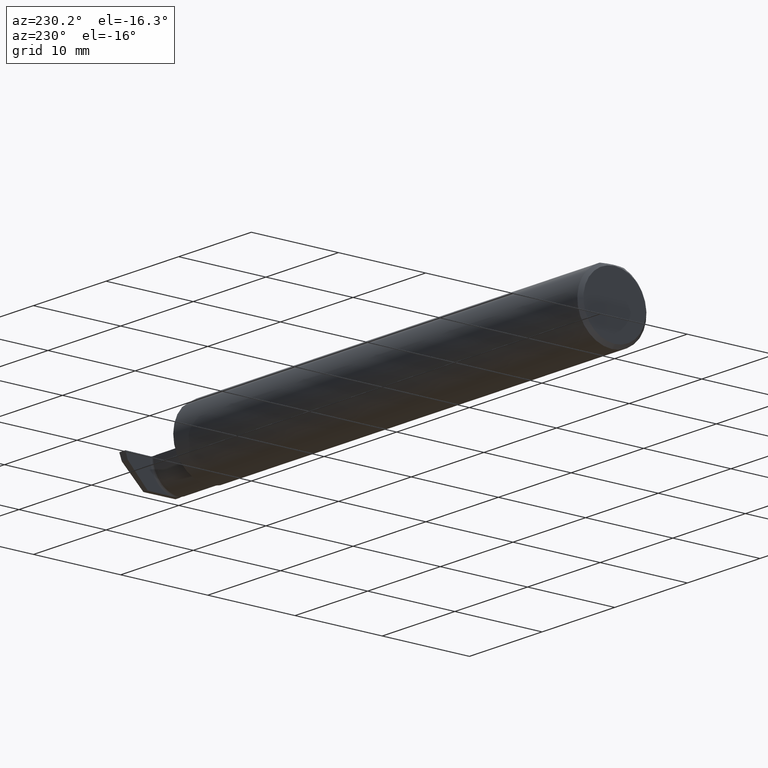
[diagram: clean part render]
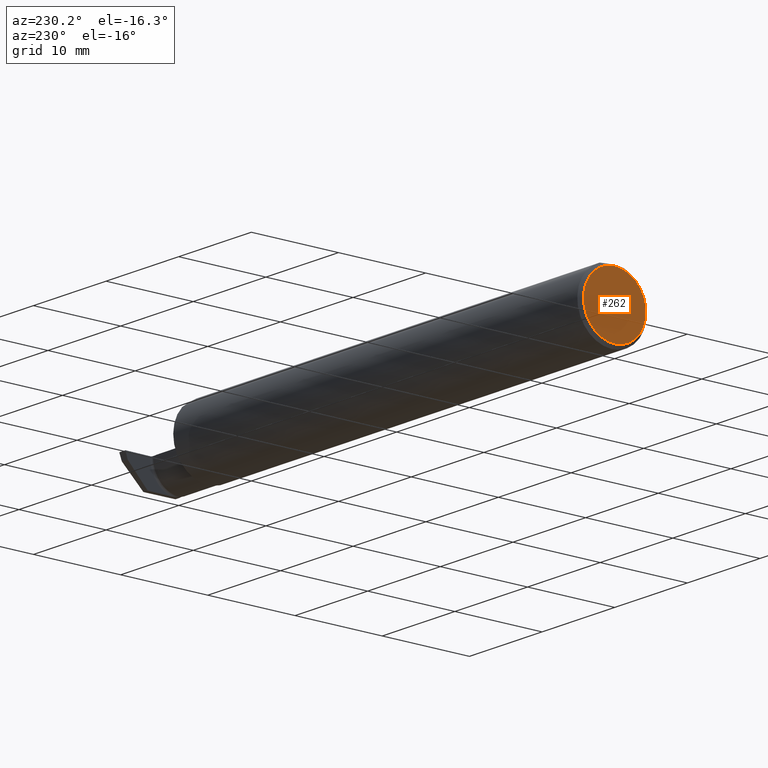
[diagram: same view with one face highlighted and labeled with its STEP entity id]
A machine part, auxiliary view. The second image highlights one B-rep face of the part: STEP entity #262.
In plain terms, the highlighted planar face has unit normal (1, 0, 0).
Its self-contained STEP definition (entity closure, byte-faithful):
#84 = CARTESIAN_POINT ( 'NONE',  ( 0.000000000000000000, 0.000000000000000000, 0.000000000000000000 ) ) ;
#119 = CIRCLE ( 'NONE', #162, 0.1410999999999999754 ) ;
#162 = AXIS2_PLACEMENT_3D ( 'NONE', #446, #973, #748 ) ;
#186 = VERTEX_POINT ( 'NONE', #529 ) ;
#236 = DIRECTION ( 'NONE',  ( 0.000000000000000000, 0.000000000000000000, 1.000000000000000000 ) ) ;
#262 = ADVANCED_FACE ( 'NONE', ( #460 ), #391, .F. ) ;
#318 = CARTESIAN_POINT ( 'NONE',  ( 0.000000000000000000, 0.000000000000000000, 0.000000000000000000 ) ) ;
#387 = DIRECTION ( 'NONE',  ( -1.000000000000000000, -0.000000000000000000, -0.000000000000000000 ) ) ;
#391 = PLANE ( 'NONE',  #516 ) ;
#443 = CARTESIAN_POINT ( 'NONE',  ( 0.000000000000000000, 1.819825143532966472E-17, 0.1410999999999999754 ) ) ;
#446 = CARTESIAN_POINT ( 'NONE',  ( 0.000000000000000000, 0.000000000000000000, 0.000000000000000000 ) ) ;
#460 = FACE_OUTER_BOUND ( 'NONE', #757, .T. ) ;
#489 = CIRCLE ( 'NONE', #627, 0.1410999999999999754 ) ;
#499 = EDGE_CURVE ( 'NONE', #873, #186, #119, .T. ) ;
#516 = AXIS2_PLACEMENT_3D ( 'NONE', #318, #849, #859 ) ;
#529 = CARTESIAN_POINT ( 'NONE',  ( 0.000000000000000000, 0.000000000000000000, -0.1410999999999999754 ) ) ;
#627 = AXIS2_PLACEMENT_3D ( 'NONE', #84, #387, #236 ) ;
#746 = EDGE_CURVE ( 'NONE', #186, #873, #489, .T. ) ;
#748 = DIRECTION ( 'NONE',  ( 0.000000000000000000, 0.000000000000000000, 1.000000000000000000 ) ) ;
#757 = EDGE_LOOP ( 'NONE', ( #923, #918 ) ) ;
#849 = DIRECTION ( 'NONE',  ( 1.000000000000000000, 0.000000000000000000, 0.000000000000000000 ) ) ;
#859 = DIRECTION ( 'NONE',  ( 0.000000000000000000, 0.000000000000000000, -1.000000000000000000 ) ) ;
#873 = VERTEX_POINT ( 'NONE', #443 ) ;
#918 = ORIENTED_EDGE ( 'NONE', *, *, #499, .T. ) ;
#923 = ORIENTED_EDGE ( 'NONE', *, *, #746, .T. ) ;
#973 = DIRECTION ( 'NONE',  ( -1.000000000000000000, -0.000000000000000000, -0.000000000000000000 ) ) ;